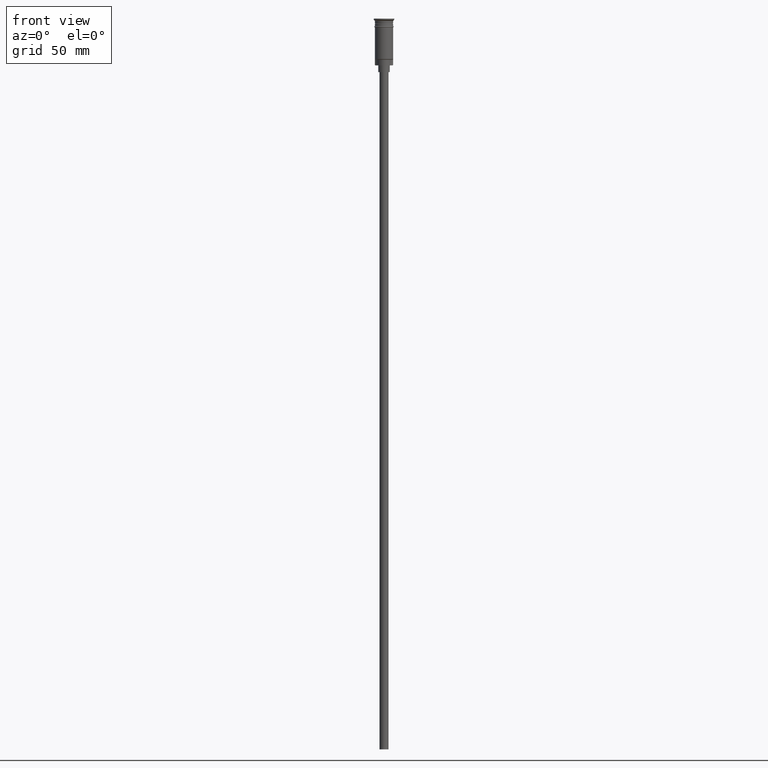
[diagram: clean part render]
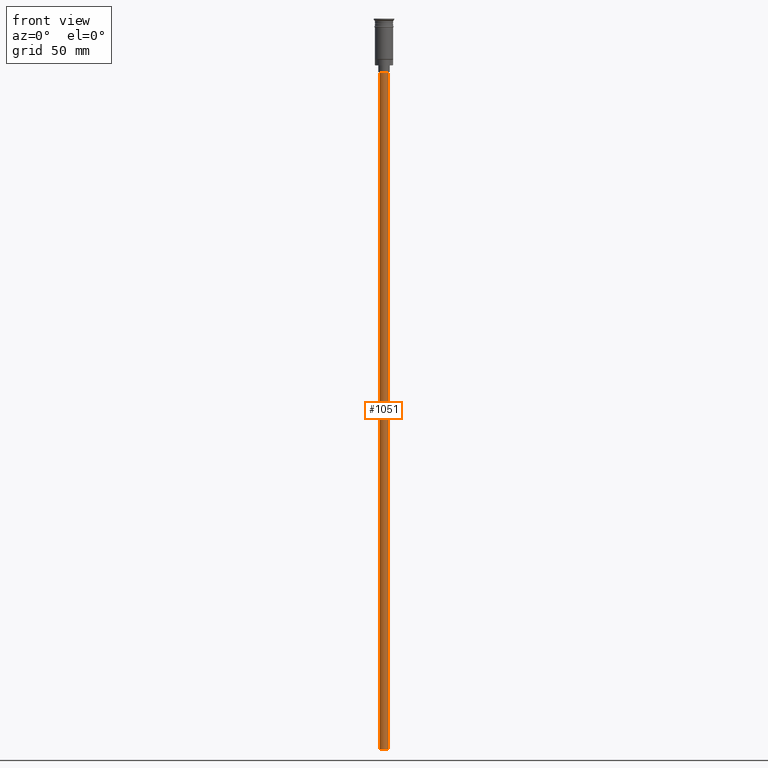
[diagram: same view with one face highlighted and labeled with its STEP entity id]
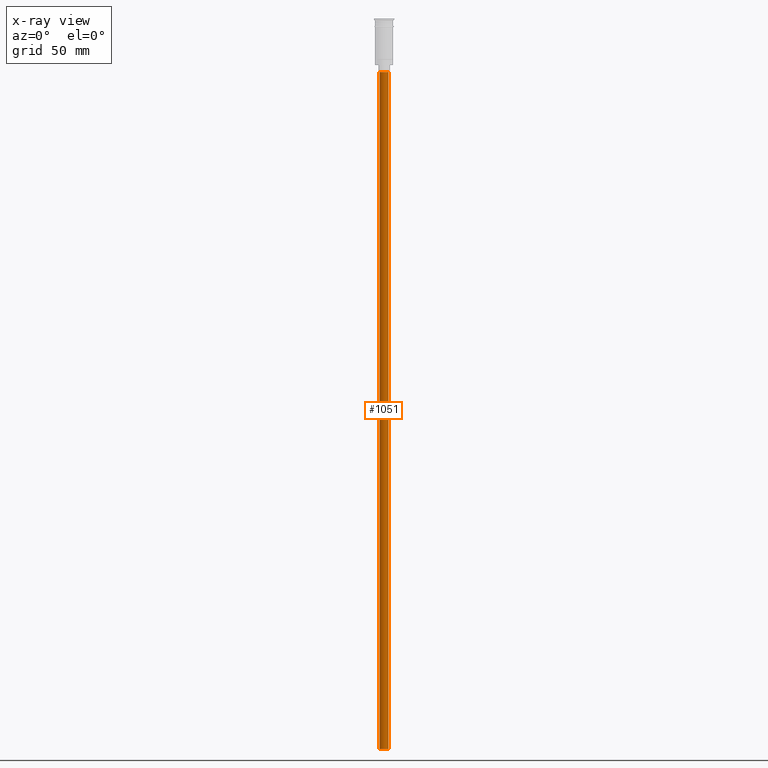
[diagram: x-ray of the same camera — body ghosted, the highlighted face saturated]
A machine part, front view. The second image highlights one B-rep face of the part: STEP entity #1051.
The next image is the same camera in x-ray: the body ghosted, the highlighted face saturated — about 0% of this face is hidden behind the body in this view.
In plain terms, the highlighted cylindrical surface (edge-blend (fillet) strip) has radius 2 mm, axis along (-0, -0, 1).
Its self-contained STEP definition (entity closure, byte-faithful):
#92 = EDGE_LOOP ( 'NONE', ( #891, #984, #307, #826 ) ) ;
#136 = AXIS2_PLACEMENT_3D ( 'NONE', #287, #275, #496 ) ;
#177 = CARTESIAN_POINT ( 'NONE',  ( -2.000000000000000000, 2.449293598294706414E-16, -320.5000000000000000 ) ) ;
#186 = VECTOR ( 'NONE', #811, 1000.000000000000000 ) ;
#275 = DIRECTION ( 'NONE',  ( -0.000000000000000000, -0.000000000000000000, 1.000000000000000000 ) ) ;
#287 = CARTESIAN_POINT ( 'NONE',  ( 0.000000000000000000, 0.000000000000000000, -320.5000000000000000 ) ) ;
#307 = ORIENTED_EDGE ( 'NONE', *, *, #519, .T. ) ;
#309 = DIRECTION ( 'NONE',  ( -1.000000000000000000, 0.000000000000000000, 0.000000000000000000 ) ) ;
#320 = CARTESIAN_POINT ( 'NONE',  ( 2.000000000000000000, 0.000000000000000000, -23.49999999999999645 ) ) ;
#405 = AXIS2_PLACEMENT_3D ( 'NONE', #1524, #1418, #309 ) ;
#440 = LINE ( 'NONE', #177, #186 ) ;
#471 = CARTESIAN_POINT ( 'NONE',  ( 2.000000000000000000, 0.000000000000000000, -320.5000000000000000 ) ) ;
#486 = CARTESIAN_POINT ( 'NONE',  ( -2.000000000000000000, 2.449293598294706414E-16, -320.5000000000000000 ) ) ;
#495 = VERTEX_POINT ( 'NONE', #561 ) ;
#496 = DIRECTION ( 'NONE',  ( 1.000000000000000000, 0.000000000000000000, 0.000000000000000000 ) ) ;
#519 = EDGE_CURVE ( 'NONE', #1144, #1357, #950, .T. ) ;
#522 = FACE_OUTER_BOUND ( 'NONE', #92, .T. ) ;
#557 = VERTEX_POINT ( 'NONE', #486 ) ;
#561 = CARTESIAN_POINT ( 'NONE',  ( -2.000000000000000000, 2.449293598294706414E-16, -23.49999999999999645 ) ) ;
#621 = DIRECTION ( 'NONE',  ( -0.000000000000000000, -0.000000000000000000, 1.000000000000000000 ) ) ;
#632 = EDGE_CURVE ( 'NONE', #1357, #495, #1284, .T. ) ;
#702 = EDGE_CURVE ( 'NONE', #1144, #557, #1480, .T. ) ;
#709 = CARTESIAN_POINT ( 'NONE',  ( 2.000000000000000000, 0.000000000000000000, -320.5000000000000000 ) ) ;
#798 = AXIS2_PLACEMENT_3D ( 'NONE', #1163, #1062, #1023 ) ;
#811 = DIRECTION ( 'NONE',  ( -0.000000000000000000, -0.000000000000000000, 1.000000000000000000 ) ) ;
#826 = ORIENTED_EDGE ( 'NONE', *, *, #632, .T. ) ;
#891 = ORIENTED_EDGE ( 'NONE', *, *, #1510, .F. ) ;
#950 = LINE ( 'NONE', #471, #1026 ) ;
#984 = ORIENTED_EDGE ( 'NONE', *, *, #702, .F. ) ;
#1011 = CYLINDRICAL_SURFACE ( 'NONE', #136, 2.000000000000000000 ) ;
#1023 = DIRECTION ( 'NONE',  ( -1.000000000000000000, 0.000000000000000000, 0.000000000000000000 ) ) ;
#1026 = VECTOR ( 'NONE', #621, 1000.000000000000000 ) ;
#1051 = ADVANCED_FACE ( 'NONE', ( #522 ), #1011, .T. ) ;
#1062 = DIRECTION ( 'NONE',  ( 0.000000000000000000, 0.000000000000000000, -1.000000000000000000 ) ) ;
#1144 = VERTEX_POINT ( 'NONE', #709 ) ;
#1163 = CARTESIAN_POINT ( 'NONE',  ( 0.000000000000000000, 0.000000000000000000, -23.49999999999999645 ) ) ;
#1284 = CIRCLE ( 'NONE', #798, 2.000000000000000000 ) ;
#1357 = VERTEX_POINT ( 'NONE', #320 ) ;
#1418 = DIRECTION ( 'NONE',  ( 0.000000000000000000, 0.000000000000000000, -1.000000000000000000 ) ) ;
#1480 = CIRCLE ( 'NONE', #405, 2.000000000000000000 ) ;
#1510 = EDGE_CURVE ( 'NONE', #557, #495, #440, .T. ) ;
#1524 = CARTESIAN_POINT ( 'NONE',  ( 0.000000000000000000, 0.000000000000000000, -320.5000000000000000 ) ) ;